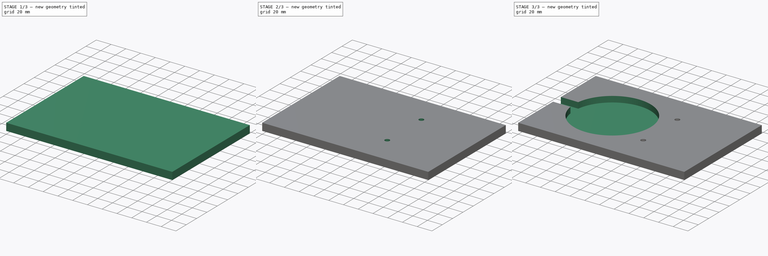
[diagram: build sequence overview — one tinted view per stage of 3, left to right]
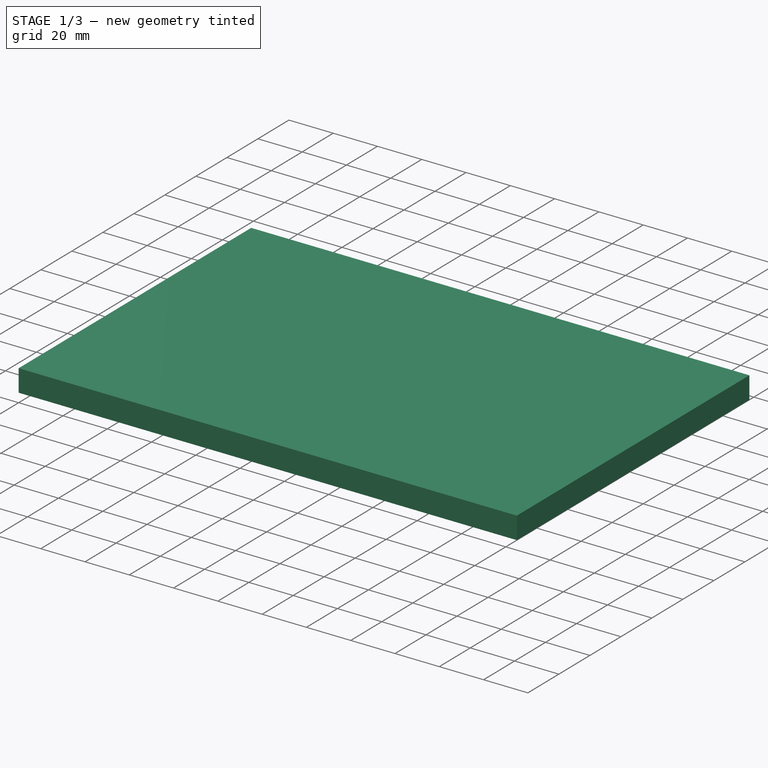
[diagram: stage 1 of 3 — iso view after this stage's code; geometry added in this stage tinted green]
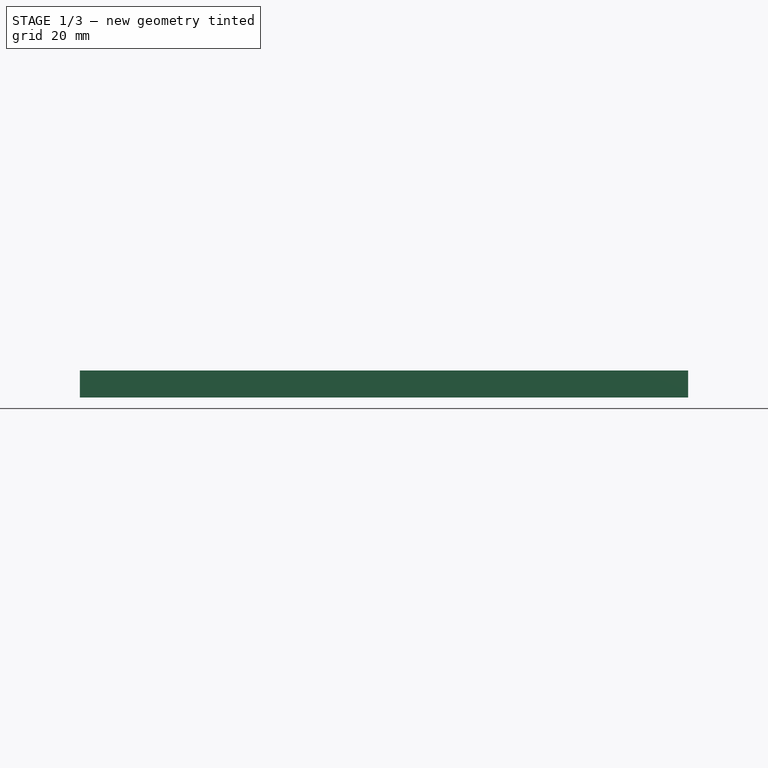
[diagram: stage 1 of 3 — front view after this stage's code; geometry added in this stage tinted green]
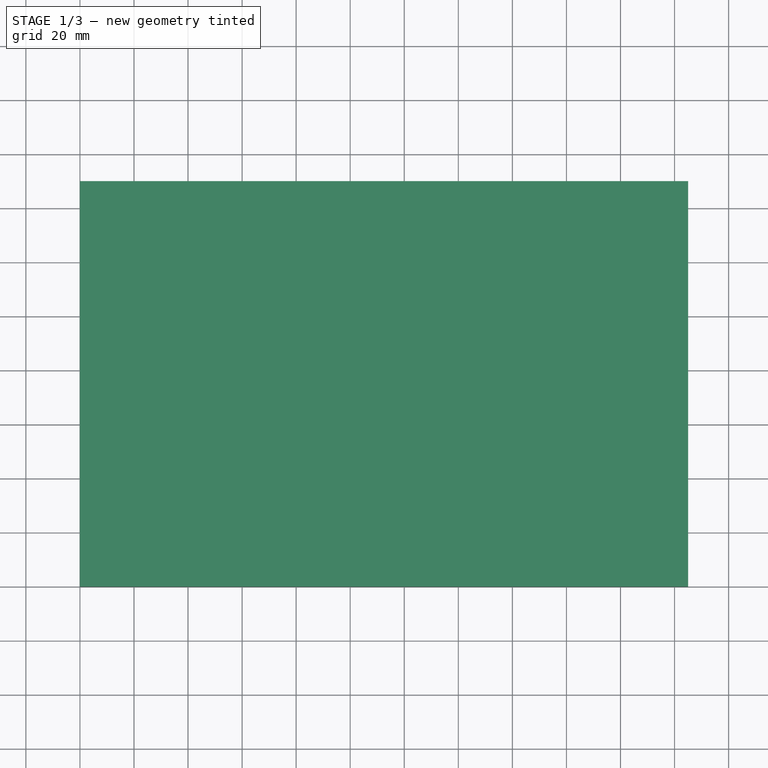
[diagram: stage 1 of 3 — top view after this stage's code; geometry added in this stage tinted green]
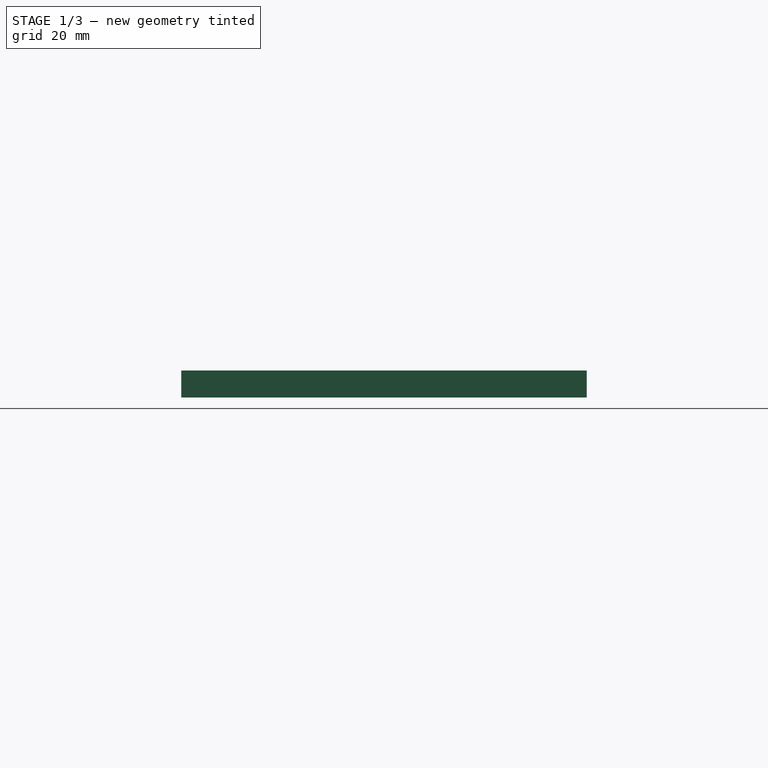
[diagram: stage 1 of 3 — right view after this stage's code; geometry added in this stage tinted green]
FCSTD DOCUMENT  (FreeCAD 0.18R4 (GitTag))
Label: Wall Mount 2.0
License: All rights reserved
LicenseURL: http://en.wikipedia.org/wiki/All_rights_reserved
objects: Sketcher::SketchObject×6, PartDesign::Pocket×5, PartDesign::Pad×1, PartDesign::Body×1
note: 19 computed .brp shape members not serialized (recipe doc carries the construction recipe); baked Part::Feature solids carry a one-line shape summary decoded from their .brp

FEATURE [Sketcher::SketchObject] Sketch
  MapMode = 5
  Support = -> [XY_Plane]
  sketch-geometry (4):
    g0: LineSegment StartX=0 StartY=150 StartZ=0 EndX=225 EndY=150 EndZ=0
    g1: LineSegment StartX=225 StartY=150 StartZ=0 EndX=225 EndY=0 EndZ=0
    g2: LineSegment StartX=225 StartY=0 StartZ=0 EndX=0 EndY=0 EndZ=0
    g3: LineSegment StartX=0 StartY=0 StartZ=0 EndX=0 EndY=150 EndZ=0
  constraints (11):
    c: Coincident(g0,g1)
    c: Coincident(g1,g2)
    c: Coincident(g2,g3)
    c: Coincident(g3,g0)
    c: Horizontal(g0)
    c: Horizontal(g2)
    c: Vertical(g1)
    c: Vertical(g3)
    c: Distance(g0) = 225
    c: Distance(g3) = 150
    c: Coincident(g2,g-1)
FEATURE [PartDesign::Pad] Pad  label="Basis"
  Length = 10
  Length2 = 100
  Profile = -> Sketch
  Type = 0
FEATURE [Sketcher::SketchObject] Sketch005
  MapMode = 5
  Placement = pos=(0,0,0) rot=(1,0,0;3.14159rad)
  sketch-geometry (2):
    g0: Circle CenterX=140 CenterY=-42 CenterZ=0 NormalX=0 NormalY=0 NormalZ=1 AngleXU=0 Radius=11.5
    g1: Circle CenterX=140 CenterY=-108 CenterZ=0 NormalX=0 NormalY=0 NormalZ=1 AngleXU=0 Radius=11.5
  constraints (4):
    c: Radius(g0) = 11.5
    c: Equal(g0,g1)
    c: Distance(g0,g-1) = 42
    c: Distance(g1,g-1) = 108
FEATURE [PartDesign::Pocket] Pocket  label="Schrauben außen"
  BaseFeature = -> Pad
  Length = 6
  Length2 = 100
  Profile = -> Sketch005
  Type = 0
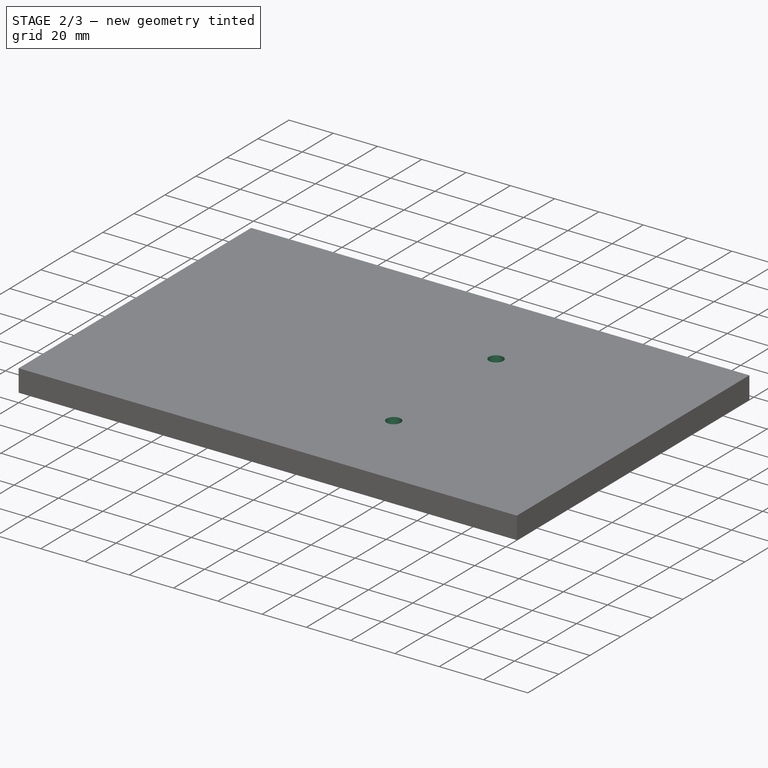
[diagram: stage 2 of 3 — iso view after this stage's code; geometry added in this stage tinted green]
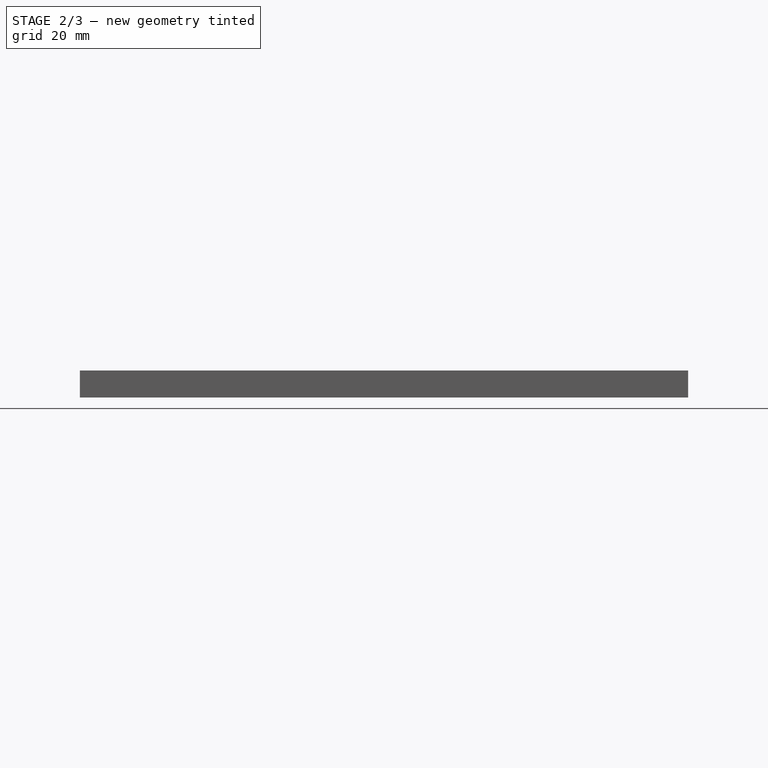
[diagram: stage 2 of 3 — front view after this stage's code; geometry added in this stage tinted green]
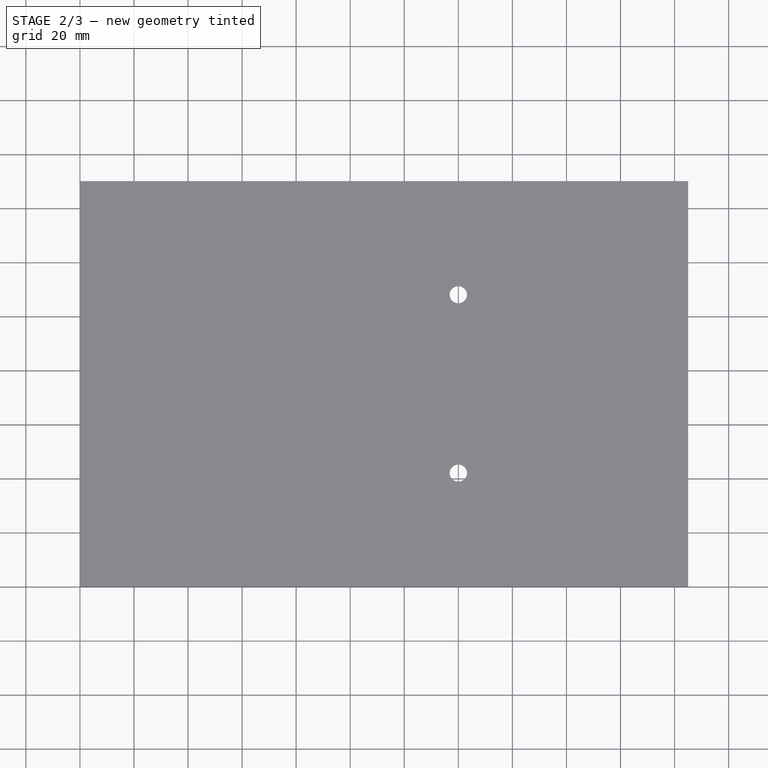
[diagram: stage 2 of 3 — top view after this stage's code; geometry added in this stage tinted green]
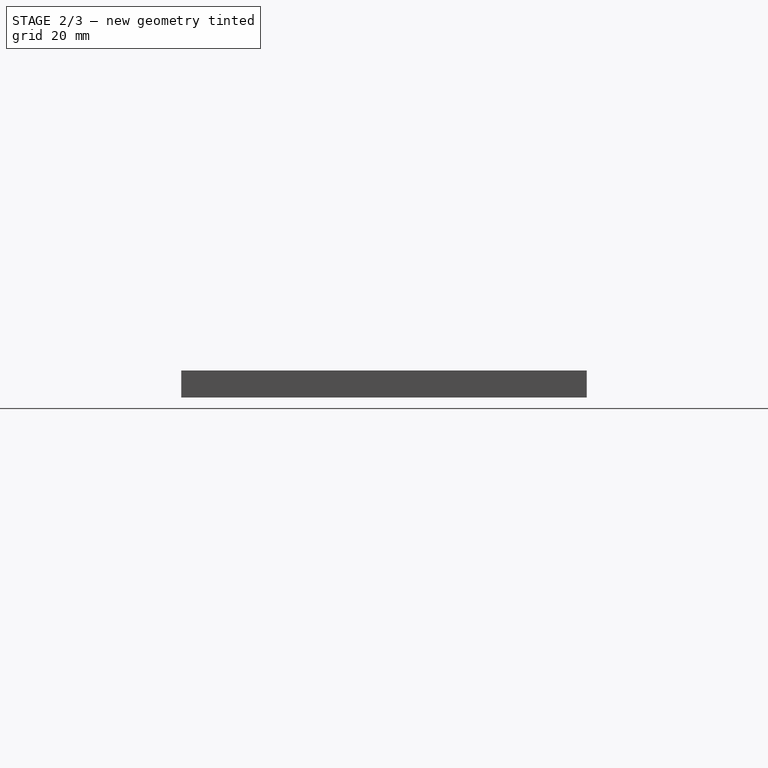
[diagram: stage 2 of 3 — right view after this stage's code; geometry added in this stage tinted green]
FEATURE [Sketcher::SketchObject] CopySketch006
  Placement = pos=(0,0,0) rot=(1,0,0;3.14159rad)
  sketch-geometry (2):
    g0: Circle CenterX=140 CenterY=-42 CenterZ=0 NormalX=0 NormalY=0 NormalZ=1 AngleXU=0 Radius=3.2
    g1: Circle CenterX=140 CenterY=-108 CenterZ=0 NormalX=0 NormalY=0 NormalZ=1 AngleXU=0 Radius=3.2
  constraints (4):
    c: Radius(g0) = 3.2
    c: Equal(g0,g1)
    c: Distance(g0,g-1) = 42
    c: Distance(g1,g-1) = 108
FEATURE [PartDesign::Pocket] Pocket001  label="Schrauben innen"
  BaseFeature = -> Pocket
  Length = 10
  Length2 = 100
  Profile = -> CopySketch006
  Type = 0
FEATURE [Sketcher::SketchObject] Sketch006
  MapMode = 5
  Placement = pos=(0,0,0) rot=(1,0,0;3.14159rad)
  Support = -> [Pocket001]
  sketch-geometry (4):
    g0: Circle CenterX=25 CenterY=-25 CenterZ=0 NormalX=0 NormalY=0 NormalZ=1 AngleXU=0 Radius=16.5
    g1: Circle CenterX=25 CenterY=-125 CenterZ=0 NormalX=0 NormalY=0 NormalZ=1 AngleXU=0 Radius=16.5
    g2: Circle CenterX=200 CenterY=-25 CenterZ=0 NormalX=0 NormalY=0 NormalZ=1 AngleXU=0 Radius=16.5
    g3: Circle CenterX=200 CenterY=-125 CenterZ=0 NormalX=0 NormalY=0 NormalZ=1 AngleXU=0 Radius=16.5
  constraints (12):
    c: Radius(g0) = 16.5
    c: Radius(g1) = 16.5
    c: Radius(g3) = 16.5
    c: Radius(g2) = 16.5
    c: Distance(g0,g-1) = 25
    c: Distance(g0,g-2) = 25
    c: Distance(g1,g-2) = 25
    c: Distance(g1,g-1) = 125
    c: Distance(g3,g-1) = 125
    c: Distance(g2,g-1) = 25
    c: Distance(g2,g-2) = 200
    c: Distance(g3,g-2) = 200
FEATURE [PartDesign::Pocket] Pocket002  label="Magneten"
  BaseFeature = -> Pocket001
  Length = 1.8
  Length2 = 100
  Profile = -> Sketch006
  Type = 0
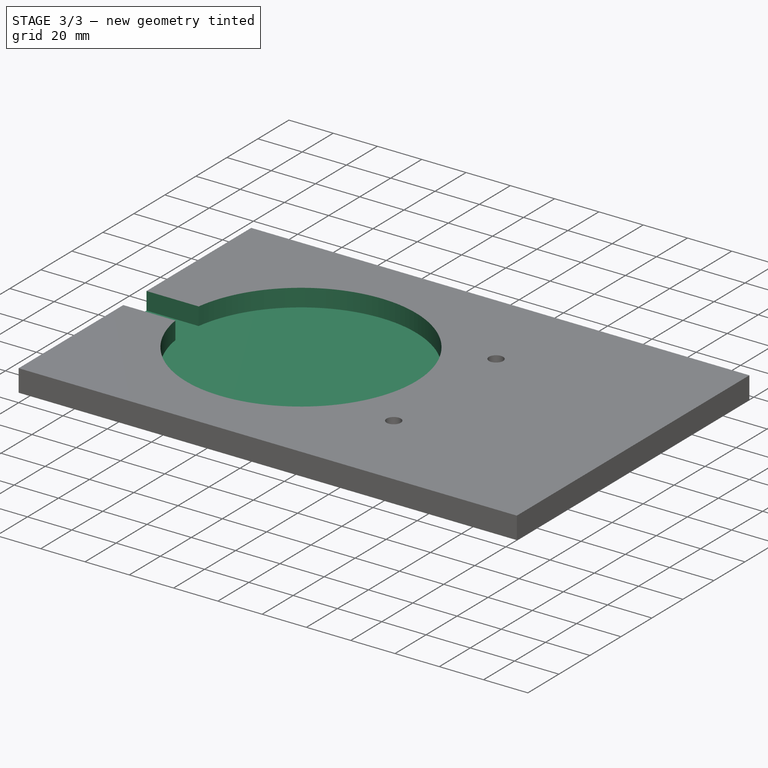
[diagram: stage 3 of 3 — iso view after this stage's code; geometry added in this stage tinted green]
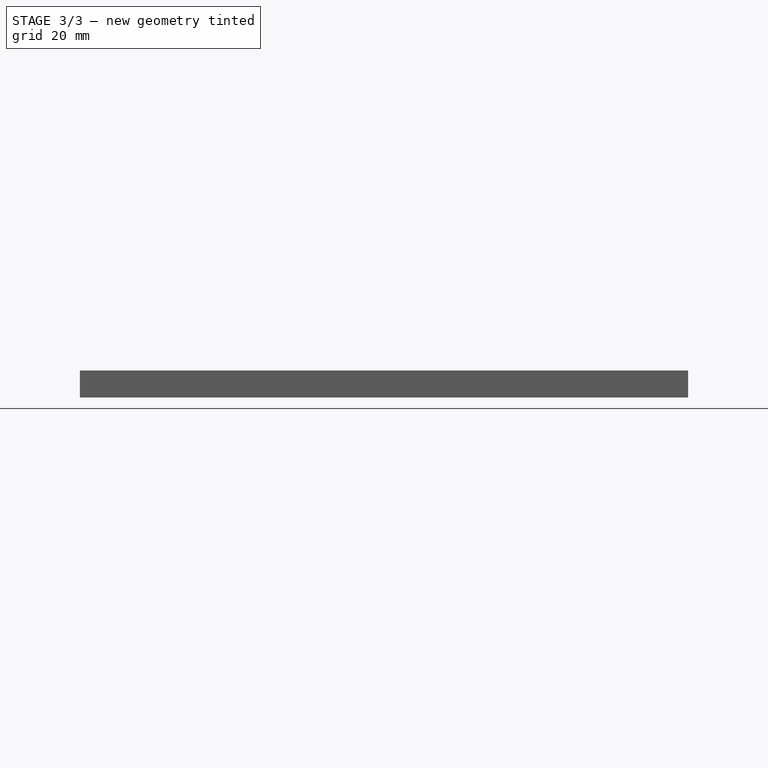
[diagram: stage 3 of 3 — front view after this stage's code; geometry added in this stage tinted green]
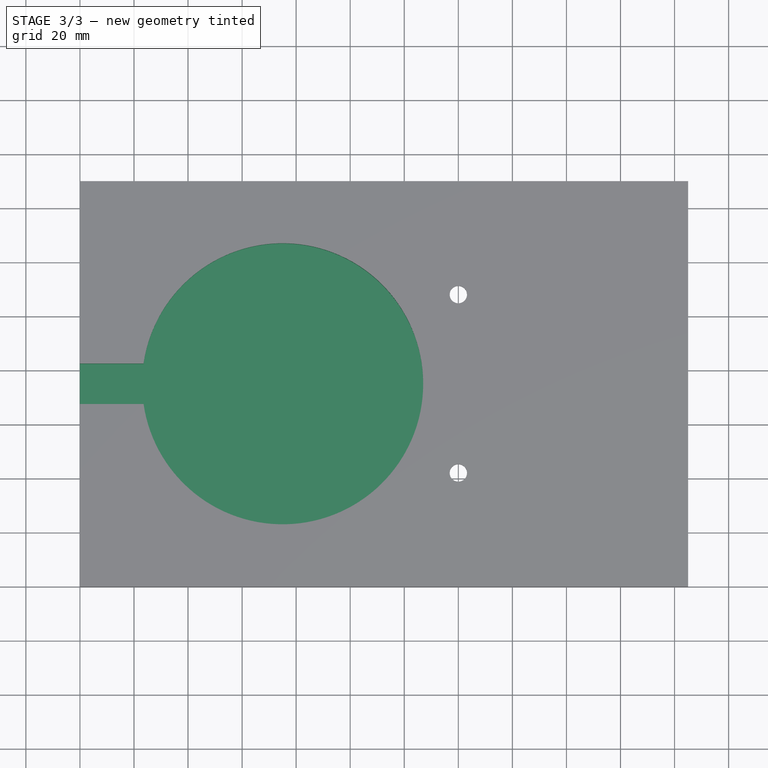
[diagram: stage 3 of 3 — top view after this stage's code; geometry added in this stage tinted green]
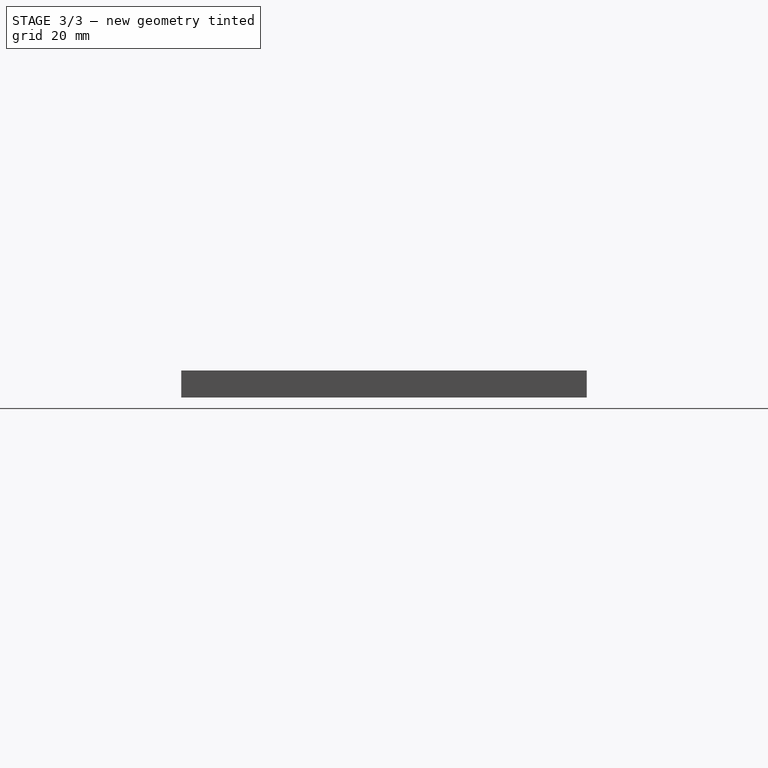
[diagram: stage 3 of 3 — right view after this stage's code; geometry added in this stage tinted green]
FEATURE [Sketcher::SketchObject] Sketch007
  MapMode = 5
  Placement = pos=(0,0,10) rot=(0,0,1;0rad)
  Support = -> [Pocket002]
  sketch-geometry (1):
    g0: Circle CenterX=75 CenterY=75 CenterZ=0 NormalX=0 NormalY=0 NormalZ=1 AngleXU=0 Radius=52
  constraints (3):
    c: Radius(g0) = 52
    c: Distance(g0,g-1) = 75
    c: Distance(g0,g-2) = 75
FEATURE [PartDesign::Pocket] Pocket003  label="Ladestation Kreis"
  BaseFeature = -> Pocket002
  Length = 8
  Length2 = 100
  Profile = -> Sketch007
  Type = 0
FEATURE [Sketcher::SketchObject] Sketch008
  MapMode = 5
  Placement = pos=(0,0,10) rot=(0,0,1;0rad)
  Support = -> [Pocket003]
  sketch-geometry (4):
    g0: LineSegment StartX=-1.96319e-06 StartY=82.5 StartZ=0 EndX=23.9629 EndY=82.5 EndZ=0
    g1: LineSegment StartX=23.9629 StartY=82.5 StartZ=0 EndX=23.9629 EndY=67.5 EndZ=0
    g2: LineSegment StartX=23.9629 StartY=67.5 StartZ=0 EndX=-1.96319e-06 EndY=67.5 EndZ=0
    g3: LineSegment StartX=-1.96319e-06 StartY=67.5 StartZ=0 EndX=-1.96319e-06 EndY=82.5 EndZ=0
  constraints (11):
    c: Coincident(g0,g1)
    c: Coincident(g1,g2)
    c: Coincident(g2,g3)
    c: Coincident(g3,g0)
    c: Horizontal(g0)
    c: Horizontal(g2)
    c: Vertical(g1)
    c: Vertical(g3)
    c: Distance(g3) = 15
    c: Distance(g2,g-1) = 67.5
    c: Distance(g0,g-1) = 82.5
FEATURE [PartDesign::Pocket] Pocket004  label="Ladestation Kabel"
  BaseFeature = -> Pocket003
  Length = 8
  Length2 = 100
  Profile = -> Sketch008
  Type = 0
FEATURE [PartDesign::Body] Body  label="Wandhalterung"
  Group = -> [Sketch,Pad,Sketch005,Pocket,Pocket001,Sketch006,Pocket002,Sketch007,Pocket003,Sketch008,Pocket004]
  Origin = -> Origin
  Tip = -> Pocket004
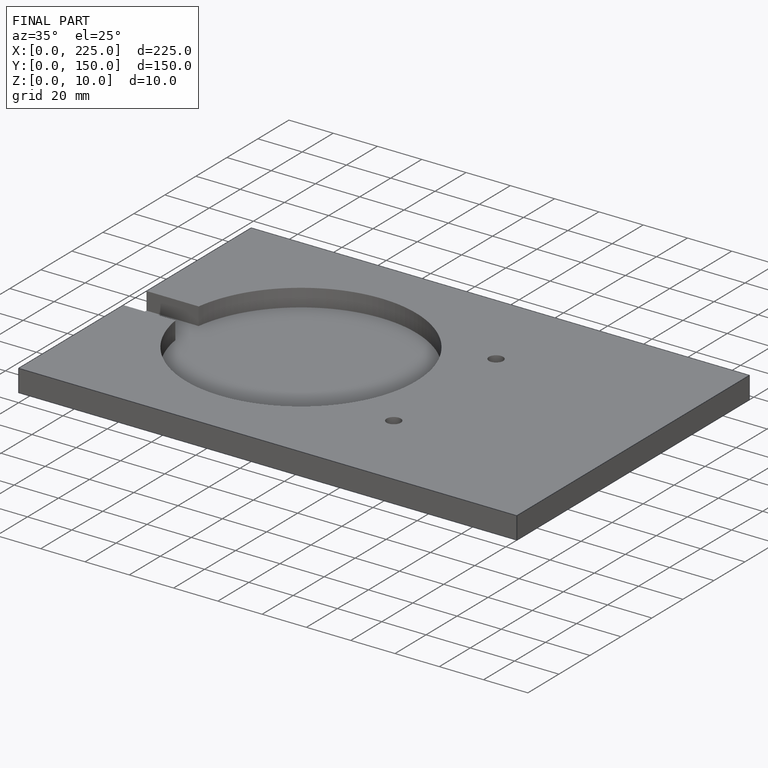
[diagram: finished part — iso view with bounding-box wireframe]
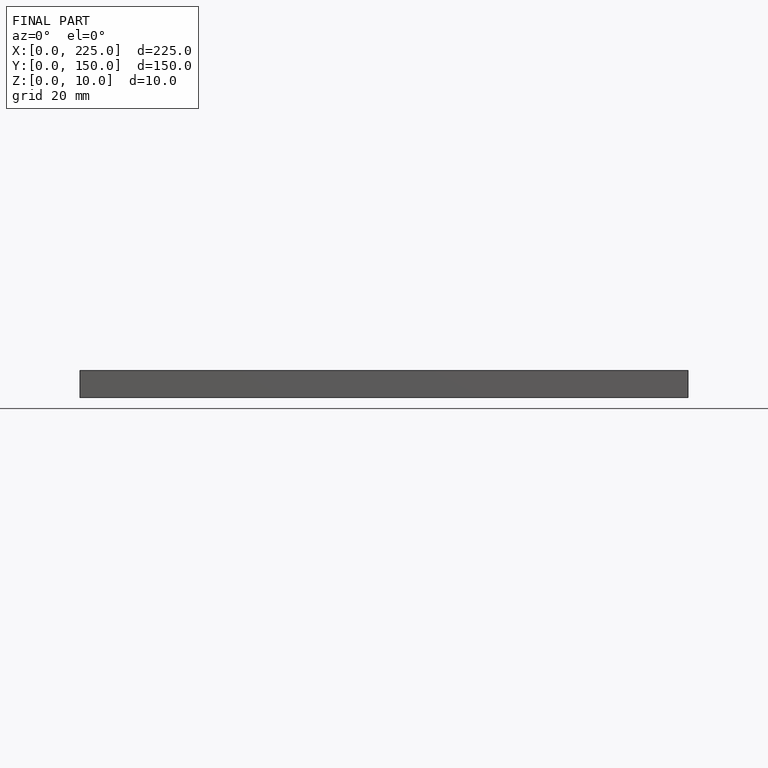
[diagram: finished part — front view with bounding-box wireframe]
